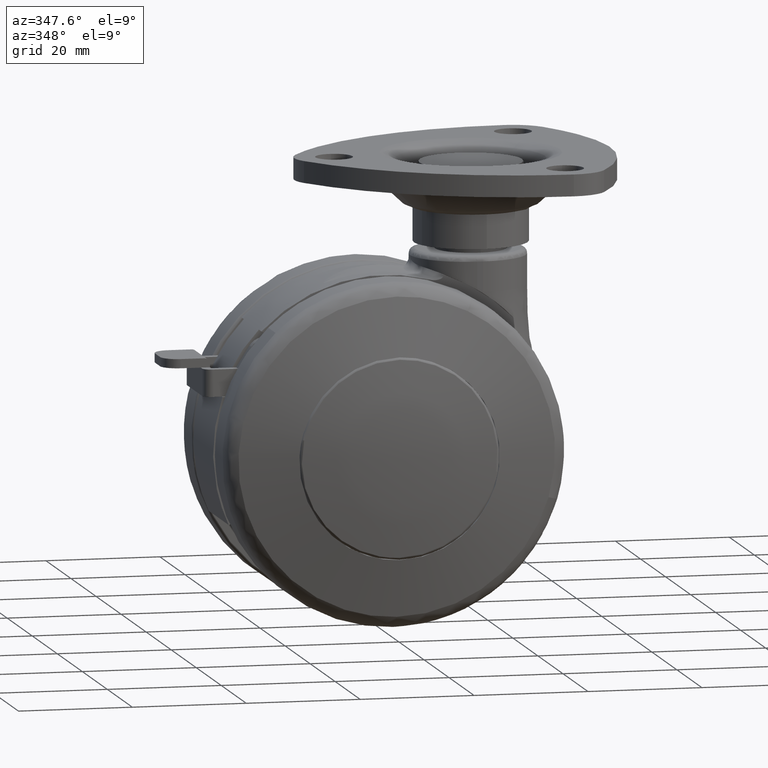
[diagram: clean part render]
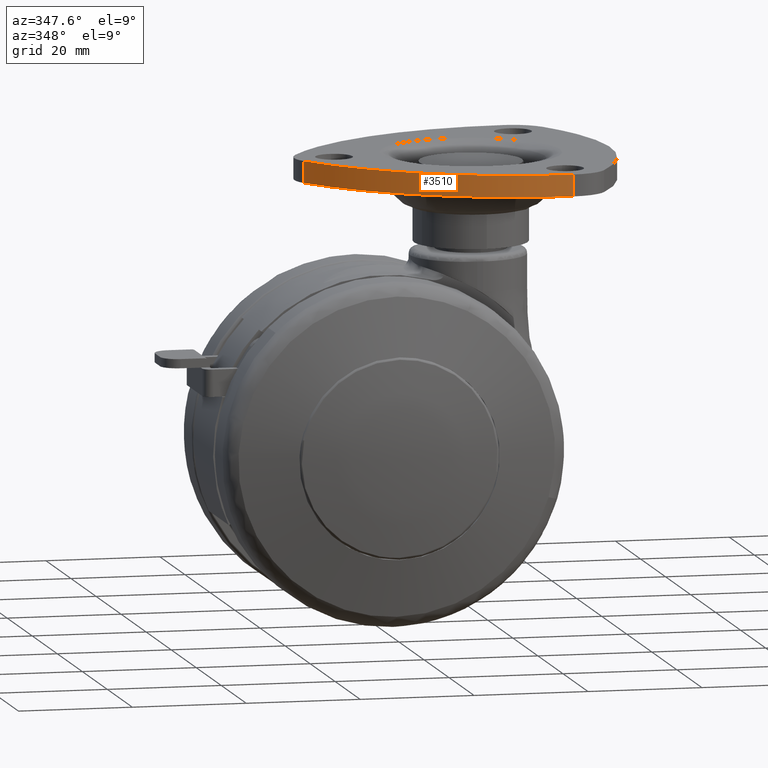
[diagram: same view with one face highlighted and labeled with its STEP entity id]
A machine part, auxiliary view. The second image highlights one B-rep face of the part: STEP entity #3510.
In plain terms, the highlighted face is a freeform B-spline surface patch.
Its self-contained STEP definition (entity closure, byte-faithful):
#3419=CARTESIAN_POINT('',(28.987332254536401,-27.784597249078850,49.500000000000000));
#3420=VERTEX_POINT('',#3419);
#3434=CARTESIAN_POINT('',(28.987332254536401,-27.784597249078850,45.700000000000003));
#3435=VERTEX_POINT('',#3434);
#3436=CARTESIAN_POINT('',(28.987332254536401,-27.784597249078850,45.700000000000003));
#3437=CARTESIAN_POINT('',(28.987332254536401,-27.784597249078850,49.500000000000000));
#3438=QUASI_UNIFORM_CURVE('',1,(#3436,#3437),.UNSPECIFIED.,.F.,.U.);
#3439=EDGE_CURVE('',#3435,#3420,#3438,.T.);
#3458=CARTESIAN_POINT('',(30.438387998822890,-27.765601871565099,45.604999999999990));
#3459=CARTESIAN_POINT('',(30.438387998822890,-27.765601871565099,49.597375000000007));
#3460=CARTESIAN_POINT('',(-0.189643755775401,-28.623095597107316,45.604999999999983));
#3461=CARTESIAN_POINT('',(-0.189643755775401,-28.623095597107316,49.597375000000014));
#3462=CARTESIAN_POINT('',(-14.219329223745993,-1.383794021629279,45.605000000000004));
#3463=CARTESIAN_POINT('',(-14.219329223745993,-1.383794021629279,49.597375000000000));
#3471=(BOUNDED_SURFACE()B_SPLINE_SURFACE(1,2,((#3458,#3460,#3462),(#3459,#3461,#3463)),.UNSPECIFIED.,.F.,.F.,.U.)B_SPLINE_SURFACE_WITH_KNOTS((2,2),(3,3),(0.0,3.992375000000017),(0.0,56.182431470009327),.UNSPECIFIED.)GEOMETRIC_REPRESENTATION_ITEM()RATIONAL_B_SPLINE_SURFACE(((1.0,0.842910678424400,0.991742658855667),(1.0,0.842910678424400,0.991742658855667)))REPRESENTATION_ITEM('')SURFACE());
#3472=CARTESIAN_POINT('',(-13.055833718531700,-3.510965390529285,49.500000000000000));
#3473=VERTEX_POINT('',#3472);
#3474=CARTESIAN_POINT('',(-13.055833718531700,-3.510965390529285,49.500000000000000));
#3475=CARTESIAN_POINT('',(0.987811298660431,-27.733925078777059,49.500000000000007));
#3476=CARTESIAN_POINT('',(28.987332254536401,-27.784597249078871,49.500000000000000));
#3484=(BOUNDED_CURVE()B_SPLINE_CURVE(2,(#3474,#3475,#3476),.UNSPECIFIED.,.F.,.U.)CURVE()GEOMETRIC_REPRESENTATION_ITEM()QUASI_UNIFORM_CURVE()RATIONAL_B_SPLINE_CURVE((1.0,0.866928865706540,1.0))REPRESENTATION_ITEM(''));
#3485=EDGE_CURVE('',#3473,#3420,#3484,.T.);
#3486=ORIENTED_EDGE('',*,*,#3485,.F.);
#3487=CARTESIAN_POINT('',(-13.055833718531700,-3.510965390529285,45.700000000000003));
#3488=VERTEX_POINT('',#3487);
#3489=CARTESIAN_POINT('',(-13.055833718531700,-3.510965390529285,45.700000000000003));
#3490=CARTESIAN_POINT('',(-13.055833718531700,-3.510965390529285,49.500000000000000));
#3491=QUASI_UNIFORM_CURVE('',1,(#3489,#3490),.UNSPECIFIED.,.F.,.U.);
#3492=EDGE_CURVE('',#3488,#3473,#3491,.T.);
#3493=ORIENTED_EDGE('',*,*,#3492,.F.);
#3494=CARTESIAN_POINT('',(-13.055833718531700,-3.510965390529285,45.700000000000003));
#3495=CARTESIAN_POINT('',(0.987811298660431,-27.733925078777059,45.699999999999996));
#3496=CARTESIAN_POINT('',(28.987332254536401,-27.784597249078871,45.700000000000003));
#3504=(BOUNDED_CURVE()B_SPLINE_CURVE(2,(#3494,#3495,#3496),.UNSPECIFIED.,.F.,.U.)CURVE()GEOMETRIC_REPRESENTATION_ITEM()QUASI_UNIFORM_CURVE()RATIONAL_B_SPLINE_CURVE((1.0,0.866928865706540,1.0))REPRESENTATION_ITEM(''));
#3505=EDGE_CURVE('',#3488,#3435,#3504,.T.);
#3506=ORIENTED_EDGE('',*,*,#3505,.T.);
#3507=ORIENTED_EDGE('',*,*,#3439,.T.);
#3508=EDGE_LOOP('',(#3486,#3493,#3506,#3507));
#3509=FACE_OUTER_BOUND('',#3508,.T.);
#3510=ADVANCED_FACE('',(#3509),#3471,.T.);